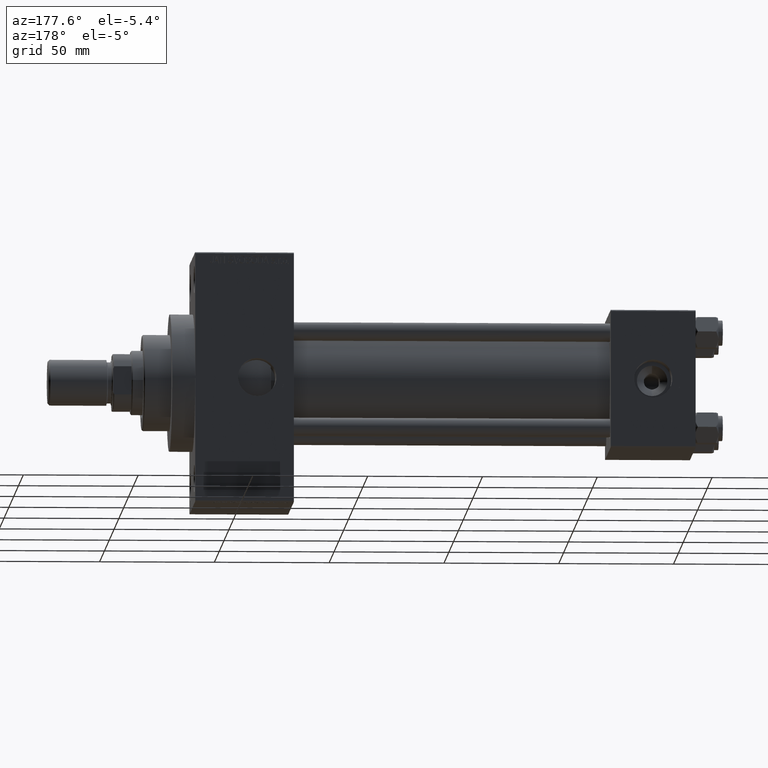
[diagram: clean part render]
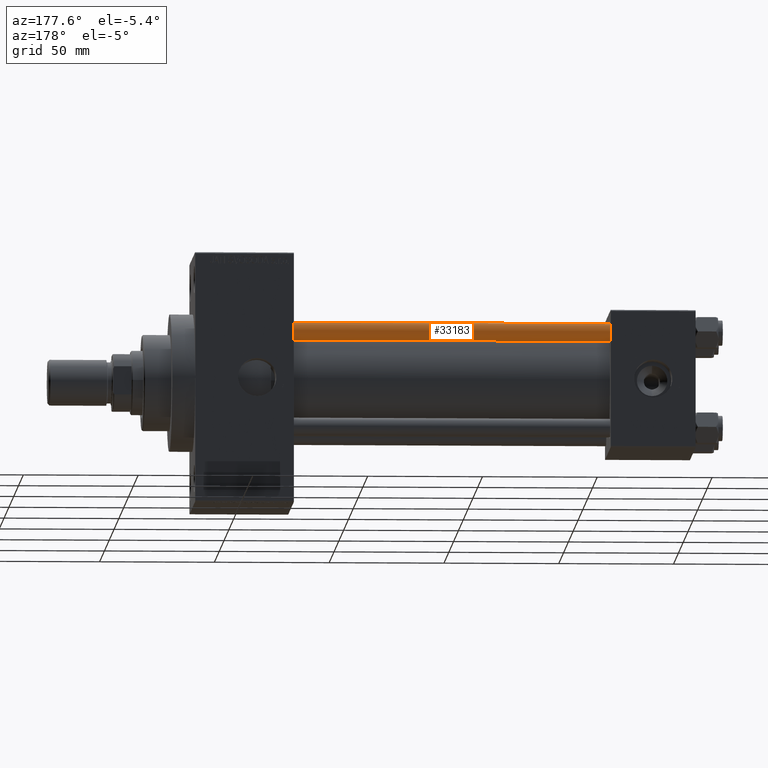
[diagram: same view with one face highlighted and labeled with its STEP entity id]
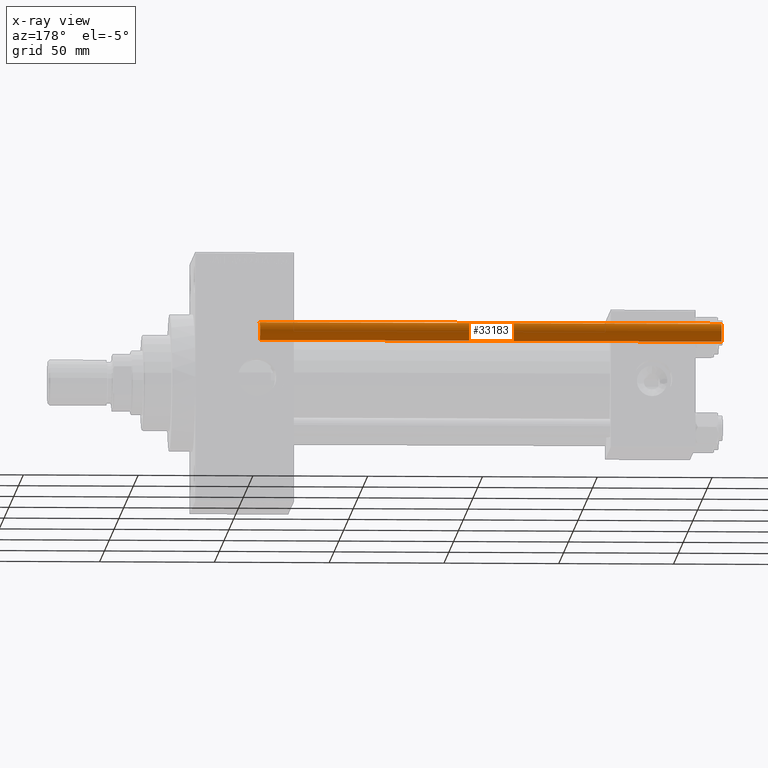
[diagram: x-ray of the same camera — body ghosted, the highlighted face saturated]
A machine part, auxiliary view. The second image highlights one B-rep face of the part: STEP entity #33183.
The next image is the same camera in x-ray: the body ghosted, the highlighted face saturated — about 0% of this face is hidden behind the body in this view.
In plain terms, the highlighted cylindrical surface (edge-blend (fillet) strip) has radius 4 mm, axis along (-1, -0, 0).
Its self-contained STEP definition (entity closure, byte-faithful):
#1906 = CARTESIAN_POINT ( 'NONE',  ( 4.000000000000000000, 4.898587196589412829E-16, 0.5000000000000004441 ) ) ;
#4254 = ORIENTED_EDGE ( 'NONE', *, *, #19711, .T. ) ;
#4446 = CARTESIAN_POINT ( 'NONE',  ( -4.000000000000000000, 0.000000000000000000, 201.5000000000000000 ) ) ;
#4716 = EDGE_LOOP ( 'NONE', ( #12463, #4254, #22260, #24819 ) ) ;
#4935 = AXIS2_PLACEMENT_3D ( 'NONE', #45536, #8399, #12006 ) ;
#5583 = CARTESIAN_POINT ( 'NONE',  ( 4.000000000000000000, 4.898587196589412829E-16, 202.0000000000000000 ) ) ;
#6408 = LINE ( 'NONE', #35814, #41588 ) ;
#7537 = DIRECTION ( 'NONE',  ( -0.000000000000000000, -0.000000000000000000, -1.000000000000000000 ) ) ;
#7773 = DIRECTION ( 'NONE',  ( -1.000000000000000000, 0.000000000000000000, 0.000000000000000000 ) ) ;
#8399 = DIRECTION ( 'NONE',  ( 0.000000000000000000, 0.000000000000000000, -1.000000000000000000 ) ) ;
#11138 = CARTESIAN_POINT ( 'NONE',  ( 0.000000000000000000, 0.000000000000000000, 202.0000000000000000 ) ) ;
#12006 = DIRECTION ( 'NONE',  ( 1.000000000000000000, 0.000000000000000000, 0.000000000000000000 ) ) ;
#12463 = ORIENTED_EDGE ( 'NONE', *, *, #42878, .T. ) ;
#13038 = DIRECTION ( 'NONE',  ( -0.000000000000000000, -0.000000000000000000, -1.000000000000000000 ) ) ;
#15757 = VERTEX_POINT ( 'NONE', #17399 ) ;
#17399 = CARTESIAN_POINT ( 'NONE',  ( -4.000000000000000000, 0.000000000000000000, 0.5000000000000004441 ) ) ;
#18430 = EDGE_CURVE ( 'NONE', #47625, #15757, #35851, .T. ) ;
#19092 = FACE_OUTER_BOUND ( 'NONE', #4716, .T. ) ;
#19711 = EDGE_CURVE ( 'NONE', #30937, #47625, #23890, .T. ) ;
#21093 = CIRCLE ( 'NONE', #4935, 4.000000000000000000 ) ;
#22260 = ORIENTED_EDGE ( 'NONE', *, *, #18430, .T. ) ;
#23882 = AXIS2_PLACEMENT_3D ( 'NONE', #11138, #7537, #7773 ) ;
#23890 = LINE ( 'NONE', #5583, #38959 ) ;
#24146 = DIRECTION ( 'NONE',  ( 1.000000000000000000, 0.000000000000000000, 0.000000000000000000 ) ) ;
#24819 = ORIENTED_EDGE ( 'NONE', *, *, #31985, .F. ) ;
#26101 = CYLINDRICAL_SURFACE ( 'NONE', #23882, 4.000000000000000000 ) ;
#26594 = AXIS2_PLACEMENT_3D ( 'NONE', #42482, #35719, #24146 ) ;
#30937 = VERTEX_POINT ( 'NONE', #31301 ) ;
#31301 = CARTESIAN_POINT ( 'NONE',  ( 4.000000000000000000, 4.898587196589412829E-16, 201.5000000000000000 ) ) ;
#31985 = EDGE_CURVE ( 'NONE', #32057, #15757, #6408, .T. ) ;
#32057 = VERTEX_POINT ( 'NONE', #4446 ) ;
#32907 = DIRECTION ( 'NONE',  ( -0.000000000000000000, -0.000000000000000000, -1.000000000000000000 ) ) ;
#33183 = ADVANCED_FACE ( 'NONE', ( #19092 ), #26101, .T. ) ;
#35719 = DIRECTION ( 'NONE',  ( -0.000000000000000000, -0.000000000000000000, 1.000000000000000000 ) ) ;
#35814 = CARTESIAN_POINT ( 'NONE',  ( -4.000000000000000000, 0.000000000000000000, 202.0000000000000000 ) ) ;
#35851 = CIRCLE ( 'NONE', #26594, 4.000000000000000000 ) ;
#38959 = VECTOR ( 'NONE', #13038, 1000.000000000000000 ) ;
#41588 = VECTOR ( 'NONE', #32907, 1000.000000000000000 ) ;
#42482 = CARTESIAN_POINT ( 'NONE',  ( 0.000000000000000000, 0.000000000000000000, 0.5000000000000004441 ) ) ;
#42878 = EDGE_CURVE ( 'NONE', #32057, #30937, #21093, .T. ) ;
#45536 = CARTESIAN_POINT ( 'NONE',  ( 0.000000000000000000, 0.000000000000000000, 201.5000000000000000 ) ) ;
#47625 = VERTEX_POINT ( 'NONE', #1906 ) ;